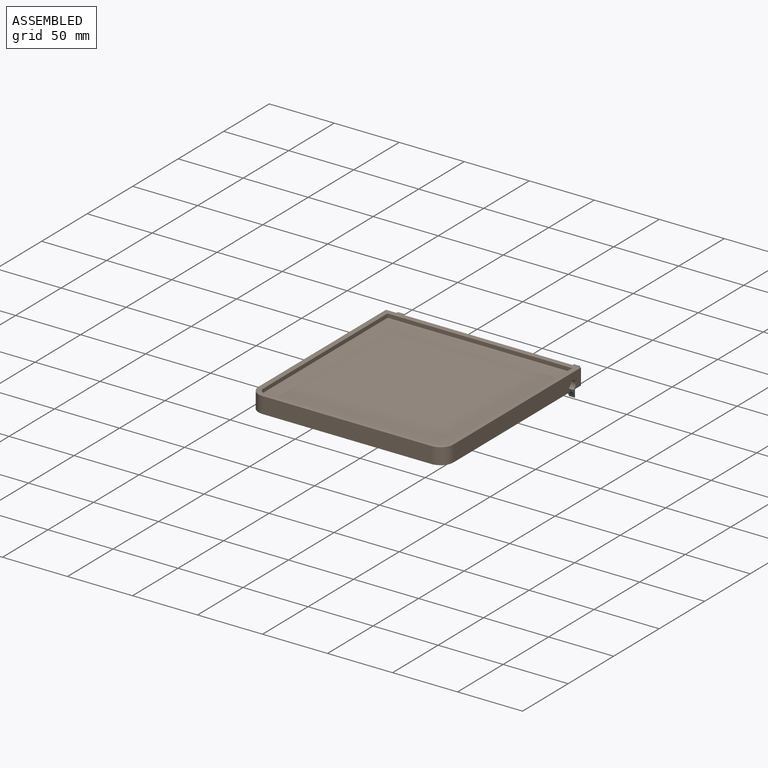
[diagram: assembled view]
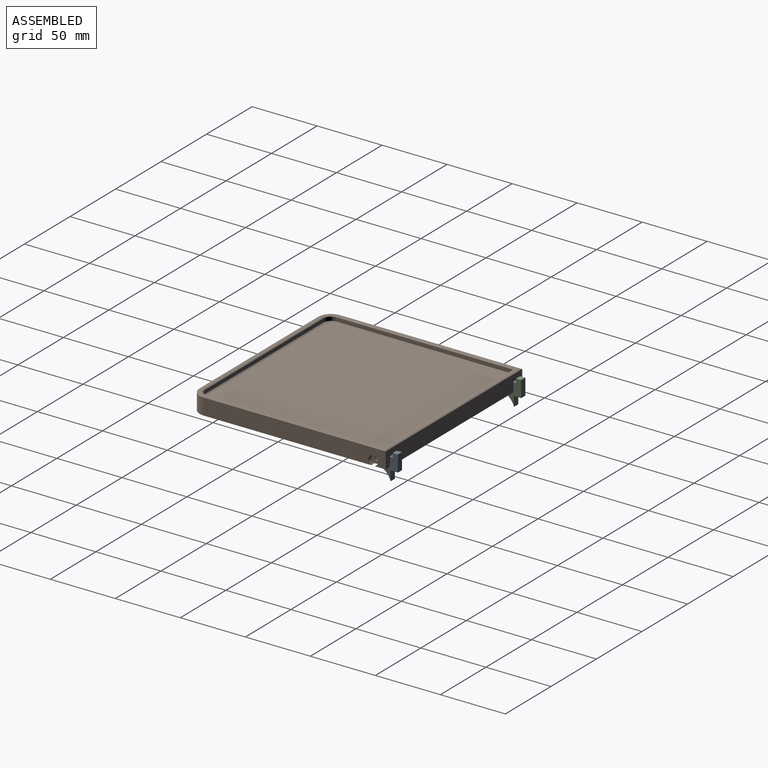
[diagram: assembled view, second angle]
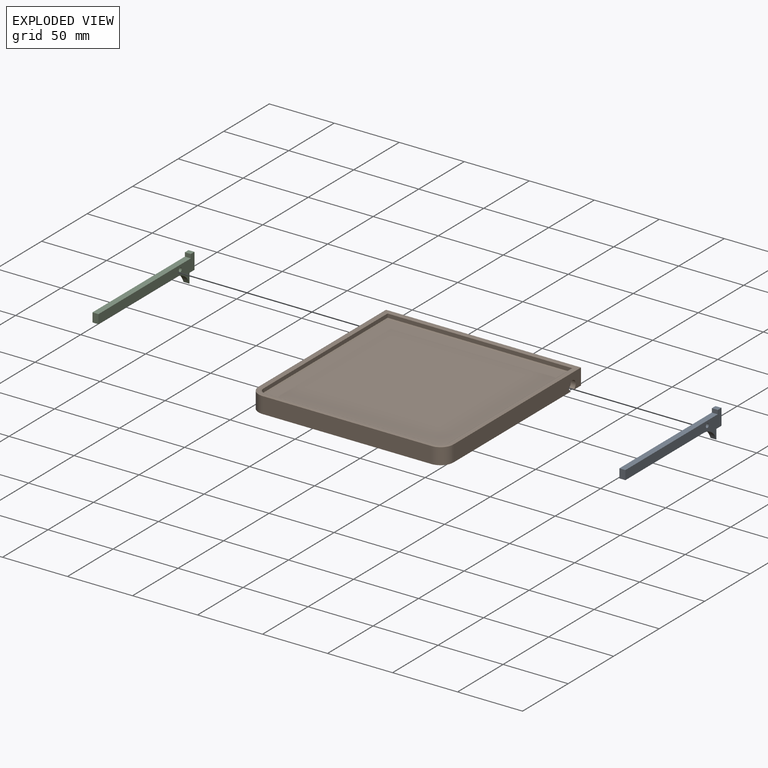
[diagram: exploded view]
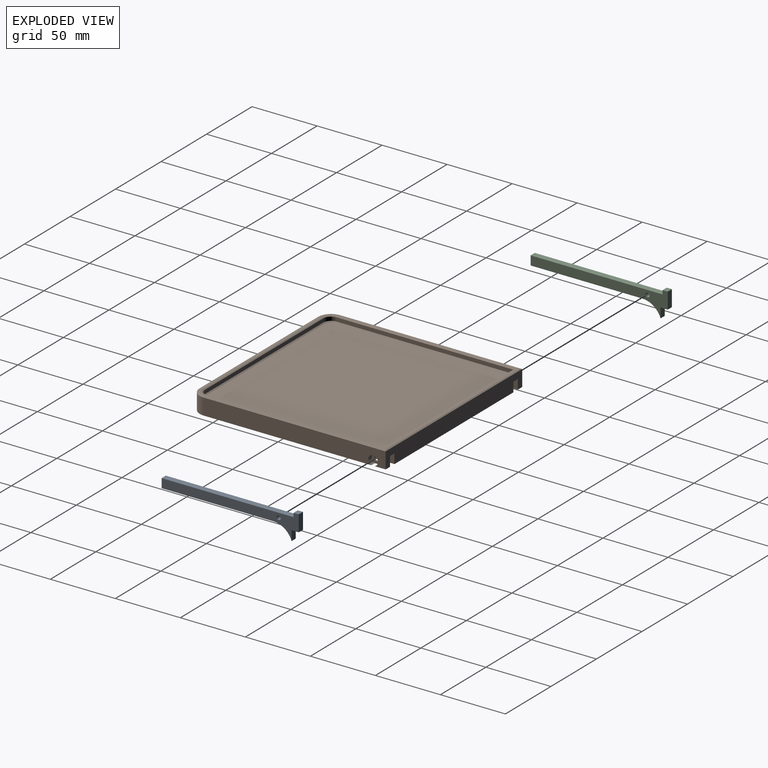
[diagram: exploded view, second angle]
ASSEMBLY  parts=3 mates=2
PART A: 12 faces, bbox 4.6x105.5x20 mm
  f0: cylinder r=15mm len=14.14mm, axis (-1,0,0), area 84.9mm2, adj f1,f8,f9,f10
  f1: plane 7.5x4.6mm, normal (0,1,0), area 34.5mm2, adj f0,f2,f9,f10
  f2: plane 5.5x4.6mm, normal (0,0,-1), area 25.3mm2, adj f1,f3,f9,f10
  f3: plane 12.5x4.6mm, normal (0,1,0), area 57.5mm2, adj f2,f4,f9,f10
  f4: plane 4.6x4mm, normal (0,0,1), area 18.4mm2, adj f3,f5,f9,f10
  f5: plane 4.6x3mm, normal (0,-1,0), area 13.8mm2, adj f4,f6,f9,f10
  f6: plane 101.5x4.6mm, normal (0,0,1), area 466.9mm2, adj f5,f7,f9,f10
  f7: plane 7x4.6mm, normal (0,-1,0), area 32.2mm2, adj f6,f8,f9,f10
  f8: plane 85.86x4.6mm, normal (0,0,-1), area 394.9mm2, adj f0,f7,f9,f10
  f9: plane 105.5x20mm, normal (1,0,0), area 794.5mm2, adj f0,f1,f2,f3,f4,f5,f6,f7
  f10: plane 105.5x20mm, normal (-1,0,0), area 794.5mm2, adj f0,f1,f2,f3,f4,f5,f6,f7
  f11: cylinder r=1.6mm len=4.6mm, axis (1,0,0), area 46.2mm2, adj f9,f10
PART B: 63 faces, bbox 150x150x13 mm
  f0: plane 150x150mm, normal (0,0,-1), area 21407.2mm2, adj f1,f2,f3,f4,f5,f6,f7,f8
  f1: plane 140x12.5mm, normal (1,0,0), area 1706.3mm2, adj f0,f2,f6,f32,f56
  f2: plane 150x12.5mm, normal (0,1,0), area 1801mm2, adj f0,f1,f3,f7,f8,f10,f21,f23
  f3: plane 140x12.5mm, normal (-1,0,0), area 1706.3mm2, adj f0,f2,f4,f29,f52
  f4: cylinder r=10mm len=12.5mm, axis (0,0,-1), area 196.3mm2, adj f0,f3,f5,f51
  f5: plane 130x12.5mm, normal (0,-1,0), area 1625mm2, adj f0,f4,f6,f53
  f6: cylinder r=10mm len=12.5mm, axis (0,0,-1), area 196.3mm2, adj f0,f1,f5,f55
  f7: plane 100x7.4mm, normal (1,0,0), area 730.9mm2, adj f0,f2,f9,f10,f30
  f8: plane 100x7.4mm, normal (-1,0,0), area 730.9mm2, adj f0,f2,f9,f10,f27
  f9: plane 7.4x5mm, normal (0,1,0), area 37mm2, adj f0,f7,f8,f10
  f10: plane 100x5mm, normal (0,0,-1), area 500mm2, adj f2,f7,f8,f9
  f11: plane 7.4x5.7mm, normal (1,0,0), area 33.1mm2, adj f0,f12,f14,f15,f27
  f12: plane 7.4x2.6mm, normal (0,-1,0), area 19.2mm2, adj f0,f11,f13,f15
  f13: plane 7.4x5.7mm, normal (-1,0,0), area 33.1mm2, adj f0,f12,f14,f15,f26
  f14: plane 7.4x2.6mm, normal (0,1,0), area 19.2mm2, adj f0,f11,f13,f15
  f15: plane 5.7x2.6mm, normal (0,0,-1), area 14.8mm2, adj f11,f12,f13,f14
  f16: plane 7.4x2.6mm, normal (0,-1,0), area 19.2mm2, adj f0,f17,f19,f20
  f17: plane 7.4x5.7mm, normal (-1,0,0), area 33.1mm2, adj f0,f16,f18,f20,f31
  f18: plane 7.4x2.6mm, normal (0,1,0), area 19.2mm2, adj f0,f17,f19,f20
  f19: plane 7.4x5.7mm, normal (1,0,0), area 33.1mm2, adj f0,f16,f18,f20,f36
  f20: plane 5.7x2.6mm, normal (0,0,-1), area 14.8mm2, adj f16,f17,f18,f19
  f21: plane 100x7.4mm, normal (-1,0,0), area 730.9mm2, adj f0,f2,f22,f24,f33
  f22: plane 7.4x5mm, normal (0,1,0), area 37mm2, adj f0,f21,f23,f24
  f23: plane 100x7.4mm, normal (1,0,0), area 730.9mm2, adj f0,f2,f22,f24,f31
  f24: plane 100x5mm, normal (0,0,-1), area 500mm2, adj f2,f21,f22,f23
  f25: cone r=0mm half-angle=59deg, axis (-1,0,0), area 10.6mm2, adj f26
  f26: cylinder r=1.7mm len=3.4mm, axis (-1,0,0), area 17.6mm2, adj f13,f25
  f27: cylinder r=1.7mm len=3.4mm, axis (-1,0,0), area 10.7mm2, adj f8,f11
  f28: plane 7.5x7.25mm, normal (-1,0,0), area 34.6mm2, adj f0,f29,f30
  f29: cylinder r=3.75mm len=7.5mm, axis (-1,0,0), area 78mm2, adj f0,f3,f28
  f30: cylinder r=1.7mm len=3.4mm, axis (-1,0,0), area 10.7mm2, adj f7,f28
  f31: cylinder r=1.7mm len=3.4mm, axis (1,0,0), area 10.7mm2, adj f17,f23
  f32: cylinder r=3.75mm len=7.5mm, axis (1,0,0), area 78mm2, adj f0,f1,f34
  f33: cylinder r=1.7mm len=3.4mm, axis (1,0,0), area 10.7mm2, adj f21,f34
  f34: plane 7.5x7.25mm, normal (1,0,0), area 34.6mm2, adj f0,f32,f33
  f35: cone r=0mm half-angle=59deg, axis (1,0,0), area 10.6mm2, adj f36
  f36: cylinder r=1.7mm len=3.4mm, axis (1,0,0), area 17.6mm2, adj f19,f35
  f37: plane 136x2.92mm, normal (1,0,0), area 397.5mm2, adj f38,f42,f46,f58
  f38: plane 142x2.92mm, normal (0,-1,0), area 415mm2, adj f37,f39,f48,f60
  f39: plane 136x2.92mm, normal (-1,0,0), area 397.5mm2, adj f38,f40,f50,f62
  f40: cylinder r=6mm len=6mm, axis (0,0,-1), area 27.5mm2, adj f39,f41,f49,f61
  f41: plane 130x2.92mm, normal (0,1,0), area 379.9mm2, adj f40,f42,f47,f59
  f42: cylinder r=6mm len=6mm, axis (0,0,-1), area 27.5mm2, adj f37,f41,f45,f57
  f43: plane 148x148mm, normal (0,0,1), area 1154.3mm2, adj f51,f52,f53,f54,f55,f56,f57,f58
  f44: plane 140x140mm, normal (0,0,1), area 19589.3mm2, adj f45,f46,f47,f48,f49,f50
  f45: cone r=5mm half-angle=60deg, axis (0,0,1), area 10mm2, adj f42,f44,f46,f47
  f46: plane 136x1mm, normal (0.5,0,0.87), area 156.5mm2, adj f37,f44,f45,f48
  f47: plane 130x1mm, normal (0,0.5,0.87), area 150.1mm2, adj f41,f44,f45,f49
  f48: plane 142x1mm, normal (0,-0.5,0.87), area 162.8mm2, adj f38,f44,f46,f50
  f49: cone r=5mm half-angle=60deg, axis (0,0,1), area 10mm2, adj f40,f44,f47,f50
  f50: plane 136x1mm, normal (-0.5,0,0.87), area 156.5mm2, adj f39,f44,f48,f49
  f51: cone r=9mm half-angle=63.4deg, axis (0,0,-1), area 16.7mm2, adj f4,f43,f52,f53
  f52: plane 140x1mm, normal (-0.45,0,0.89), area 156mm2, adj f3,f43,f51,f54
  f53: plane 130x1mm, normal (0,-0.45,0.89), area 145.3mm2, adj f5,f43,f51,f55
  f54: plane 150x1mm, normal (0,0.45,0.89), area 166.6mm2, adj f2,f43,f52,f56
  f55: cone r=9mm half-angle=63.4deg, axis (0,0,-1), area 16.7mm2, adj f6,f43,f53,f56
  f56: plane 140x1mm, normal (0.45,0,0.89), area 156mm2, adj f1,f43,f54,f55
  f57: cone r=6mm half-angle=63.4deg, axis (0,0,1), area 11.4mm2, adj f42,f43,f58,f59
  f58: plane 137x1mm, normal (0.45,0,0.89), area 152.6mm2, adj f37,f43,f57,f60
  f59: plane 130x1mm, normal (0,0.45,0.89), area 145.3mm2, adj f41,f43,f57,f61
  f60: plane 144x1mm, normal (0,-0.45,0.89), area 159.9mm2, adj f38,f43,f58,f62
  f61: cone r=6mm half-angle=63.4deg, axis (0,0,1), area 11.4mm2, adj f40,f43,f59,f62
  f62: plane 137x1mm, normal (-0.45,0,0.89), area 152.6mm2, adj f39,f43,f60,f61
PART C: same geometry as A
PLACE A t=(60.8,95.9,-2.5)mm
PLACE B t=(-6.95,20.5,7.5)mm
PLACE C t=(-74.7,95.9,-2.5)mm
MATE fastened B.f25 <-> C.f11  axis (-1,0,0) through (-72.2,85.9,11)mm
MATE fastened B.f25 <-> A.f11  axis (1,0,0) through (58.3,85.9,11)mm
